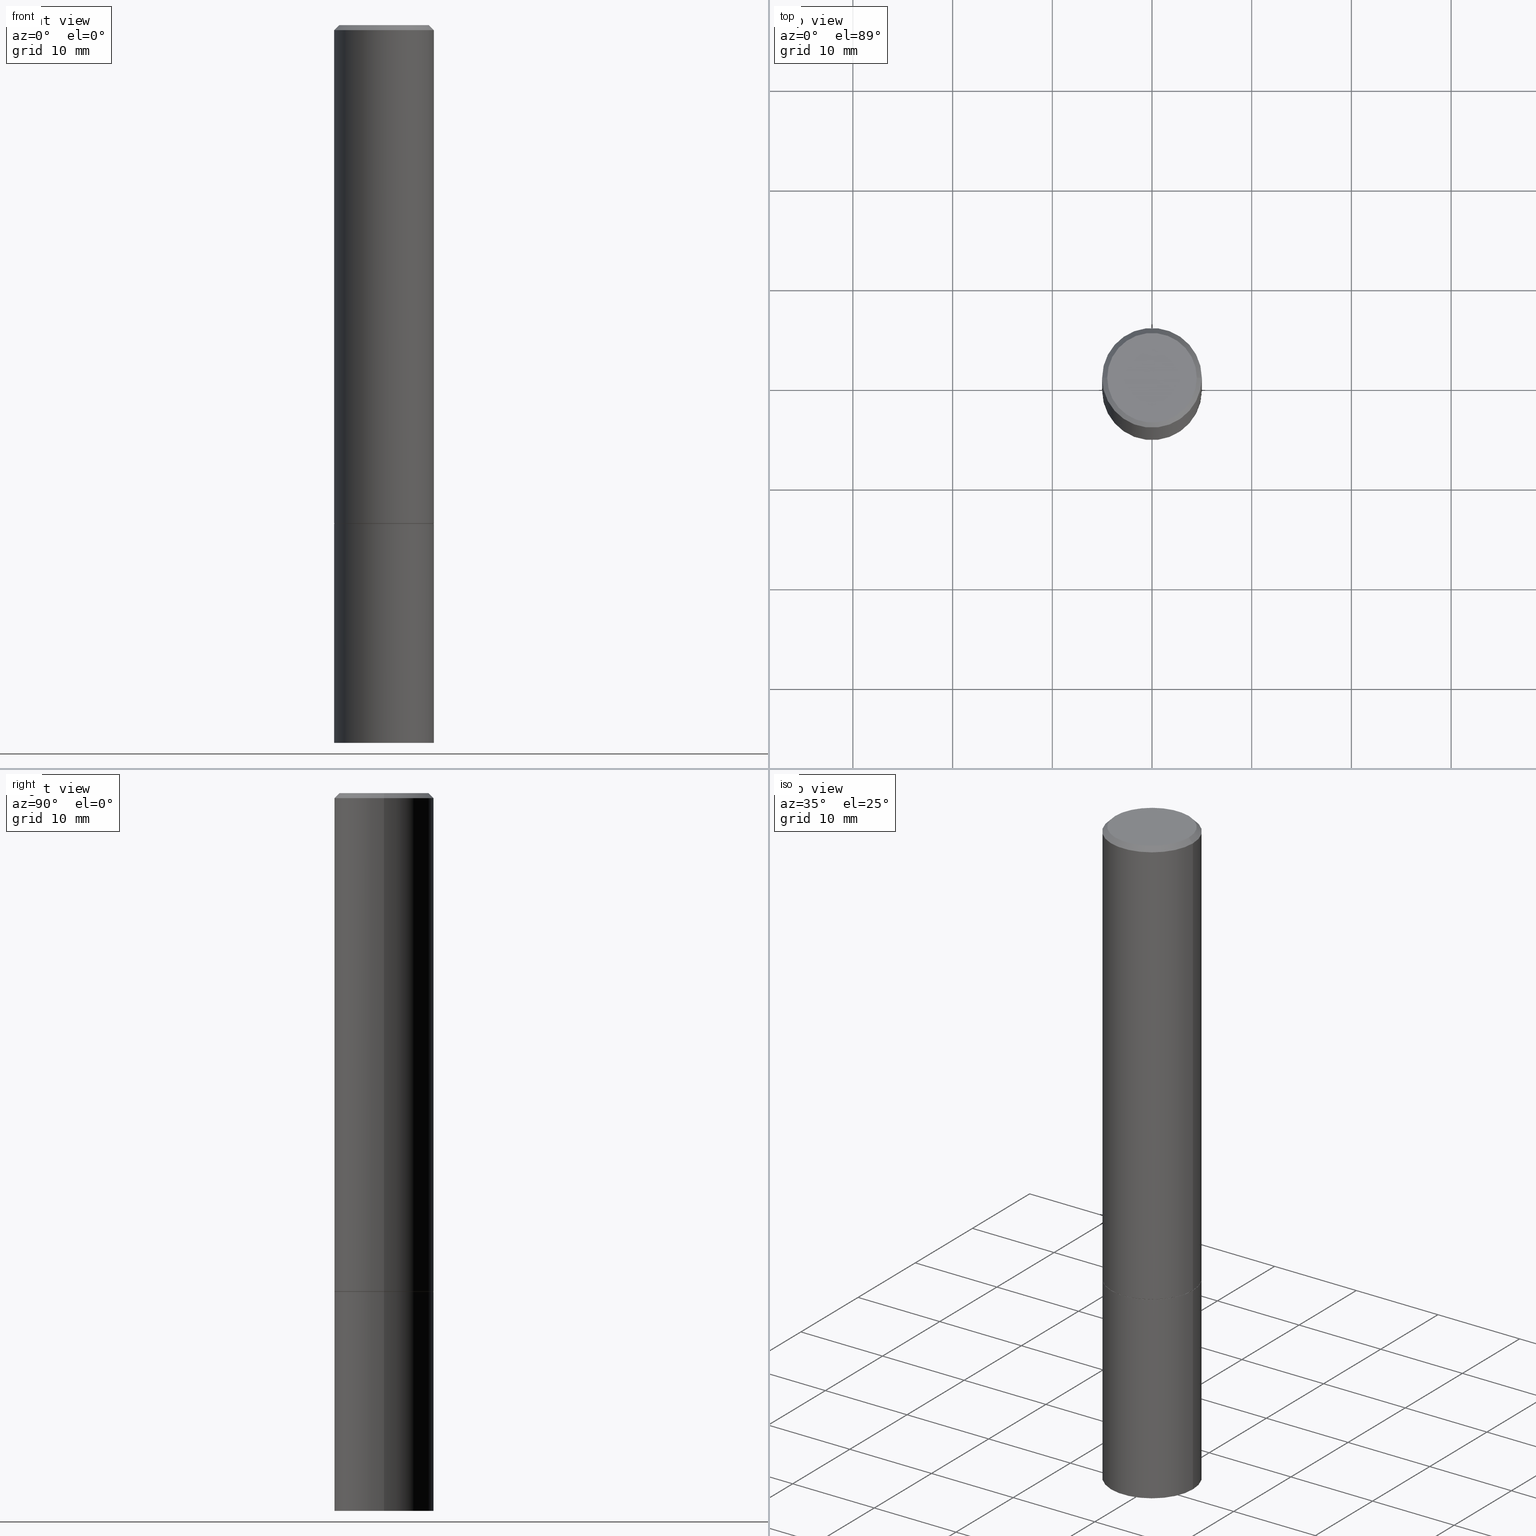
[diagram: canonical four-view strip — front | top / right | iso, engineering-drawing reading convention]
A machine part, canonical four-view strip (front | top / right | iso — engineering-drawing reading convention). The complete STEP part file that produces these views, byte-faithful:
ISO-10303-21;
HEADER;
FILE_DESCRIPTION (( 'STEP AP203' ),
    '1' );
FILE_NAME ('46364.STEP',
    '2024-02-28T10:23:35',
    ( '' ),
    ( '' ),
    'SwSTEP 2.0',
    'SolidWorks 2023',
    '' );
FILE_SCHEMA (( 'CONFIG_CONTROL_DESIGN' ));
ENDSEC;

DATA;
#1 = COORDINATED_UNIVERSAL_TIME_OFFSET ( 5, 0, .BEHIND. ) ;
#2 = ORIENTED_EDGE ( 'NONE', *, *, #43, .T. ) ;
#3 = LINE ( 'NONE', #337, #159 ) ;
#4 = CARTESIAN_POINT ( 'NONE',  ( 0.1958499999999999963, -8.240594255937587301E-15, -1.968500000000000139 ) ) ;
#5 = AXIS2_PLACEMENT_3D ( 'NONE', #317, #77, #11 ) ;
#6 = CC_DESIGN_APPROVAL ( #75, ( #284 ) ) ;
#7 = DESIGN_CONTEXT ( 'detailed design', #212, 'design' ) ;
#8 = ORIENTED_EDGE ( 'NONE', *, *, #99, .T. ) ;
#9 = ADVANCED_FACE ( 'NONE', ( #179 ), #154, .T. ) ;
#10 = DIRECTION ( 'NONE',  ( -2.438088387897960049E-29, 3.491481338843145188E-15, 1.000000000000000000 ) ) ;
#11 = DIRECTION ( 'NONE',  ( 1.000000000000000000, -6.982962677686267499E-15, 0.000000000000000000 ) ) ;
#12 = EDGE_CURVE ( 'NONE', #282, #65, #70, .T. ) ;
#13 = SECURITY_CLASSIFICATION ( '', '', #84 ) ;
#14 = PERSON_AND_ORGANIZATION ( #260, #228 ) ;
#15 = CARTESIAN_POINT ( 'NONE',  ( -0.1968500000000000250, -6.986263633954999297E-15, -1.968500000000000139 ) ) ;
#16 = DIRECTION ( 'NONE',  ( -2.445468806185136597E-29, 3.491481338843145583E-15, 1.000000000000000000 ) ) ;
#17 =( NAMED_UNIT ( * ) SI_UNIT ( $, .STERADIAN. ) SOLID_ANGLE_UNIT ( ) );
#18 = DIRECTION ( 'NONE',  ( 2.445468806185136597E-29, -3.491481338843145583E-15, -1.000000000000000000 ) ) ;
#19 = CARTESIAN_POINT ( 'NONE',  ( 0.1968500000000000250, -8.247577218615273316E-15, -1.968500000000000139 ) ) ;
#20 = CARTESIAN_POINT ( 'NONE',  ( 0.1968499999999997752, -1.420318657638187544E-15, -0.02000000000000004205 ) ) ;
#21 = ORIENTED_EDGE ( 'NONE', *, *, #258, .T. ) ;
#22 = DIRECTION ( 'NONE',  ( 1.000000000000000000, -6.982962677686268288E-15, 0.000000000000000000 ) ) ;
#23 = APPROVAL_STATUS ( 'not_yet_approved' ) ;
#24 = ORIENTED_EDGE ( 'NONE', *, *, #320, .F. ) ;
#25 = EDGE_CURVE ( 'NONE', #115, #110, #41, .T. ) ;
#26 = MANIFOLD_SOLID_BREP ( 'Body-Move/Copy2[2]', #200 ) ;
#27 = VECTOR ( 'NONE', #209, 39.37007874015748143 ) ;
#28 = EDGE_LOOP ( 'NONE', ( #360, #128, #174, #199 ) ) ;
#29 = PRODUCT_DEFINITION_SHAPE ( 'NONE', 'NONE',  #284 ) ;
#30 = ADVANCED_FACE ( 'NONE', ( #170 ), #118, .T. ) ;
#31 = AXIS2_PLACEMENT_3D ( 'NONE', #107, #307, #22 ) ;
#32 = CIRCLE ( 'NONE', #119, 0.1768499999999997851 ) ;
#33 = CARTESIAN_POINT ( 'NONE',  ( -0.1968499999999997752, 1.304766576325676930E-15, -0.02000000000000004205 ) ) ;
#34 = FACE_OUTER_BOUND ( 'NONE', #187, .T. ) ;
#35 = ORIENTED_EDGE ( 'NONE', *, *, #102, .T. ) ;
#36 = ADVANCED_FACE ( 'NONE', ( #214 ), #142, .T. ) ;
#37 = CARTESIAN_POINT ( 'NONE',  ( -0.1958499999999999963, -5.481383067526575717E-15, -1.968500000000000139 ) ) ;
#38 = APPLICATION_PROTOCOL_DEFINITION ( 'international standard', 'config_control_design', 1994, #212 ) ;
#39 = ORIENTED_EDGE ( 'NONE', *, *, #12, .F. ) ;
#40 = CC_DESIGN_PERSON_AND_ORGANIZATION_ASSIGNMENT ( #361, #48, ( #146 ) ) ;
#41 = CIRCLE ( 'NONE', #249, 0.1968500000000000250 ) ;
#42 = EDGE_LOOP ( 'NONE', ( #68, #97 ) ) ;
#43 = EDGE_CURVE ( 'NONE', #140, #282, #105, .T. ) ;
#44 = CARTESIAN_POINT ( 'NONE',  ( -0.1768499999999997851, 1.269851762937246069E-15, 4.268512490091652920E-18 ) ) ;
#45 = CIRCLE ( 'NONE', #256, 0.1968499999999997752 ) ;
#46 = AXIS2_PLACEMENT_3D ( 'NONE', #313, #176, #350 ) ;
#47 = DIRECTION ( 'NONE',  ( 1.000000000000000000, -6.982962677686267499E-15, 0.000000000000000000 ) ) ;
#48 = PERSON_AND_ORGANIZATION_ROLE ( 'creator' ) ;
#49 = CYLINDRICAL_SURFACE ( 'NONE', #206, 0.1968499999999999139 ) ;
#50 = EDGE_LOOP ( 'NONE', ( #151, #35, #329, #316 ) ) ;
#51 = ADVANCED_FACE ( 'NONE', ( #160 ), #197, .F. ) ;
#52 = PERSON_AND_ORGANIZATION ( #260, #228 ) ;
#53 = LINE ( 'NONE', #20, #321 ) ;
#54 = DIRECTION ( 'NONE',  ( -2.445468806185136877E-29, 3.491481338843145188E-15, 1.000000000000000000 ) ) ;
#55 = DIRECTION ( 'NONE',  ( -2.445468806185136597E-29, 3.491481338843145583E-15, 1.000000000000000000 ) ) ;
#56 = AXIS2_PLACEMENT_3D ( 'NONE', #332, #275, #335 ) ;
#57 = CARTESIAN_POINT ( 'NONE',  ( 0.1968499999999997752, -1.420318657638187544E-15, -0.02000000000000004205 ) ) ;
#58 = FACE_OUTER_BOUND ( 'NONE', #50, .T. ) ;
#59 = APPROVAL_PERSON_ORGANIZATION ( #295, #75, #164 ) ;
#60 = ADVANCED_FACE ( 'NONE', ( #191 ), #49, .T. ) ;
#61 = ADVANCED_BREP_SHAPE_REPRESENTATION ( '46364', ( #141, #26, #64 ), #264 ) ;
#62 = CYLINDRICAL_SURFACE ( 'NONE', #46, 0.1968499999999999139 ) ;
#63 = AXIS2_PLACEMENT_3D ( 'NONE', #347, #175, #301 ) ;
#64 = AXIS2_PLACEMENT_3D ( 'NONE', #166, #276, #139 ) ;
#65 = VERTEX_POINT ( 'NONE', #19 ) ;
#66 = ADVANCED_FACE ( 'NONE', ( #58 ), #216, .T. ) ;
#67 = DIRECTION ( 'NONE',  ( 1.000000000000000000, -6.982962677686265922E-15, 4.876176775795935793E-29 ) ) ;
#68 = ORIENTED_EDGE ( 'NONE', *, *, #320, .T. ) ;
#69 = LINE ( 'NONE', #344, #300 ) ;
#70 = CIRCLE ( 'NONE', #123, 0.1968500000000000250 ) ;
#71 = LOCAL_TIME ( 5, 23, 35.00000000000000000, #1 ) ;
#72 = ORIENTED_EDGE ( 'NONE', *, *, #25, .T. ) ;
#73 = ADVANCED_FACE ( 'NONE', ( #135 ), #248, .T. ) ;
#74 = ORIENTED_EDGE ( 'NONE', *, *, #131, .T. ) ;
#75 = APPROVAL ( #23, 'UNSPECIFIED' ) ;
#76 = DIRECTION ( 'NONE',  ( 1.000000000000000000, -6.982962677686265922E-15, 4.876176775795935793E-29 ) ) ;
#77 = DIRECTION ( 'NONE',  ( -2.445468806185136597E-29, 3.491481338843145583E-15, 1.000000000000000000 ) ) ;
#78 = APPROVAL_DATE_TIME ( #185, #75 ) ;
#79 = CONICAL_SURFACE ( 'NONE', #137, 0.1958499999999999963, 0.7853981633974141952 ) ;
#80 = DIRECTION ( 'NONE',  ( 1.000000000000000000, -6.982962677686268288E-15, 0.000000000000000000 ) ) ;
#81 = ORIENTED_EDGE ( 'NONE', *, *, #180, .F. ) ;
#82 = APPROVAL_DATE_TIME ( #303, #224 ) ;
#83 = DIRECTION ( 'NONE',  ( -2.445468806185136597E-29, 3.491481338843145583E-15, 1.000000000000000000 ) ) ;
#84 = SECURITY_CLASSIFICATION_LEVEL ( 'unclassified' ) ;
#85 = DIRECTION ( 'NONE',  ( 1.000000000000000000, -6.982962677686267499E-15, 0.000000000000000000 ) ) ;
#86 = EDGE_LOOP ( 'NONE', ( #265, #2, #24, #167 ) ) ;
#87 = CARTESIAN_POINT ( 'NONE',  ( 1.374596203102589532E-15, 0.1968499999999931416, -1.968500000000000805 ) ) ;
#88 = CARTESIAN_POINT ( 'NONE',  ( 1.374596203102610831E-15, 0.1968499999999901162, -2.834600000000000453 ) ) ;
#89 = PRODUCT ( '46364', '46364', '', ( #220 ) ) ;
#90 = ORIENTED_EDGE ( 'NONE', *, *, #126, .F. ) ;
#91 = AXIS2_PLACEMENT_3D ( 'NONE', #88, #305, #250 ) ;
#92 = CARTESIAN_POINT ( 'NONE',  ( 4.813905344975441835E-29, -6.872981015512731707E-15, -1.968500000000000139 ) ) ;
#93 = DIRECTION ( 'NONE',  ( -1.000000000000000000, 6.982962677686266711E-15, 0.000000000000000000 ) ) ;
#94 = CARTESIAN_POINT ( 'NONE',  ( -0.1968500000000000250, -6.986263633954999297E-15, -2.834600000000000009 ) ) ;
#95 = ORIENTED_EDGE ( 'NONE', *, *, #120, .T. ) ;
#96 = CALENDAR_DATE ( 2024, 28, 2 ) ;
#97 = ORIENTED_EDGE ( 'NONE', *, *, #12, .T. ) ;
#98 = ORIENTED_EDGE ( 'NONE', *, *, #294, .T. ) ;
#99 = EDGE_CURVE ( 'NONE', #306, #323, #182, .T. ) ;
#100 = CIRCLE ( 'NONE', #31, 0.1958499999999999963 ) ;
#101 = EDGE_LOOP ( 'NONE', ( #336, #95, #98, #39 ) ) ;
#102 = EDGE_CURVE ( 'NONE', #184, #323, #53, .T. ) ;
#103 = EDGE_LOOP ( 'NONE', ( #340, #221, #74, #8 ) ) ;
#104 = PERSON_AND_ORGANIZATION_ROLE ( 'classification_officer' ) ;
#105 = LINE ( 'NONE', #328, #348 ) ;
#106 = APPLICATION_PROTOCOL_DEFINITION ( 'international standard', 'config_control_design', 1994, #238 ) ;
#107 = CARTESIAN_POINT ( 'NONE',  ( 4.813905344975441835E-29, -6.872981015512731707E-15, -1.968500000000000139 ) ) ;
#108 = ORIENTED_EDGE ( 'NONE', *, *, #116, .T. ) ;
#109 = DIRECTION ( 'NONE',  ( -2.445468806185136597E-29, 3.491481338843145583E-15, 1.000000000000000000 ) ) ;
#110 = VERTEX_POINT ( 'NONE', #364 ) ;
#111 = FACE_OUTER_BOUND ( 'NONE', #211, .T. ) ;
#112 = EDGE_CURVE ( 'NONE', #354, #143, #100, .T. ) ;
#113 = CIRCLE ( 'NONE', #5, 0.1968500000000000250 ) ;
#114 = PLANE ( 'NONE',  #314 ) ;
#115 = VERTEX_POINT ( 'NONE', #225 ) ;
#116 = EDGE_CURVE ( 'NONE', #277, #184, #241, .T. ) ;
#117 = ORIENTED_EDGE ( 'NONE', *, *, #183, .F. ) ;
#118 = CONICAL_SURFACE ( 'NONE', #210, 0.1958499999999999963, 0.7853981633974141952 ) ;
#119 = AXIS2_PLACEMENT_3D ( 'NONE', #205, #291, #297 ) ;
#120 = EDGE_CURVE ( 'NONE', #140, #237, #129, .T. ) ;
#121 = CARTESIAN_POINT ( 'NONE',  ( -1.043851414335219820E-46, 1.490343170380447200E-32, 4.268512490100411279E-18 ) ) ;
#122 = COORDINATED_UNIVERSAL_TIME_OFFSET ( 5, 0, .BEHIND. ) ;
#123 = AXIS2_PLACEMENT_3D ( 'NONE', #299, #55, #47 ) ;
#124 = DIRECTION ( 'NONE',  ( 0.7071067811865232589, -2.468850131082003836E-15, 0.7071067811865715536 ) ) ;
#125 = ORIENTED_EDGE ( 'NONE', *, *, #112, .T. ) ;
#126 = EDGE_CURVE ( 'NONE', #110, #115, #227, .T. ) ;
#127 = APPROVAL_ROLE ( '' ) ;
#128 = ORIENTED_EDGE ( 'NONE', *, *, #147, .T. ) ;
#129 = CIRCLE ( 'NONE', #338, 0.1968500000000000250 ) ;
#130 = DIRECTION ( 'NONE',  ( -2.445468806185136597E-29, 3.491481338843145583E-15, 1.000000000000000000 ) ) ;
#131 = EDGE_CURVE ( 'NONE', #277, #306, #343, .T. ) ;
#132 = APPROVAL_STATUS ( 'not_yet_approved' ) ;
#133 = DIRECTION ( 'NONE',  ( 2.438088387897960049E-29, -3.491481338843145188E-15, -1.000000000000000000 ) ) ;
#134 = PERSON_AND_ORGANIZATION_ROLE ( 'creator' ) ;
#135 = FACE_OUTER_BOUND ( 'NONE', #101, .T. ) ;
#136 = DIRECTION ( 'NONE',  ( -2.445468806185136877E-29, 3.491481338843145188E-15, 1.000000000000000000 ) ) ;
#137 = AXIS2_PLACEMENT_3D ( 'NONE', #251, #109, #226 ) ;
#138 = DIRECTION ( 'NONE',  ( 0.7071067811865465735, -7.319954787623252890E-15, -0.7071067811865484609 ) ) ;
#139 = DIRECTION ( 'NONE',  ( 1.000000000000000000, 0.000000000000000000, 0.000000000000000000 ) ) ;
#140 = VERTEX_POINT ( 'NONE', #94 ) ;
#141 = MANIFOLD_SOLID_BREP ( 'Body-Move/Copy2[1]', #168 ) ;
#142 = PLANE ( 'NONE',  #91 ) ;
#143 = VERTEX_POINT ( 'NONE', #148 ) ;
#144 = UNCERTAINTY_MEASURE_WITH_UNIT (LENGTH_MEASURE( 1.000000000000000082E-05 ), #252, 'distance_accuracy_value', 'NONE');
#145 = CIRCLE ( 'NONE', #236, 0.1958499999999999963 ) ;
#146 = PRODUCT_DEFINITION_FORMATION_WITH_SPECIFIED_SOURCE ( 'ANY', '', #89, .NOT_KNOWN. ) ;
#147 = EDGE_CURVE ( 'NONE', #115, #306, #325, .T. ) ;
#148 = CARTESIAN_POINT ( 'NONE',  ( -0.1958499999999999963, -5.476084613178353315E-15, -1.968500000000000139 ) ) ;
#149 = EDGE_CURVE ( 'NONE', #237, #140, #113, .T. ) ;
#150 = CARTESIAN_POINT ( 'NONE',  ( 4.813905344975441835E-29, -6.872981015512731707E-15, -1.968500000000000139 ) ) ;
#151 = ORIENTED_EDGE ( 'NONE', *, *, #198, .F. ) ;
#152 = DIRECTION ( 'NONE',  ( -0.7071067811865232589, 7.493145998870265808E-15, 0.7071067811865715536 ) ) ;
#153 = DATE_AND_TIME ( #96, #363 ) ;
#154 = CYLINDRICAL_SURFACE ( 'NONE', #232, 0.1968500000000000250 ) ;
#155 = ORIENTED_EDGE ( 'NONE', *, *, #99, .F. ) ;
#156 = CC_DESIGN_PERSON_AND_ORGANIZATION_ASSIGNMENT ( #246, #104, ( #13 ) ) ;
#157 = ORIENTED_EDGE ( 'NONE', *, *, #258, .F. ) ;
#158 = CARTESIAN_POINT ( 'NONE',  ( 6.931925878012387517E-29, -9.896953003084780885E-15, -2.834600000000000009 ) ) ;
#159 = VECTOR ( 'NONE', #136, 39.37007874015748143 ) ;
#160 = FACE_OUTER_BOUND ( 'NONE', #346, .T. ) ;
#161 = DIRECTION ( 'NONE',  ( 1.000000000000000000, -6.982962677686268288E-15, 0.000000000000000000 ) ) ;
#162 = PERSON_AND_ORGANIZATION_ROLE ( 'design_supplier' ) ;
#163 = CARTESIAN_POINT ( 'NONE',  ( 0.000000000000000000, 0.000000000000000000, 0.000000000000000000 ) ) ;
#164 = APPROVAL_ROLE ( '' ) ;
#165 = DIRECTION ( 'NONE',  ( -2.445468806185136877E-29, 3.491481338843145188E-15, 1.000000000000000000 ) ) ;
#166 = CARTESIAN_POINT ( 'NONE',  ( 0.000000000000000000, 0.000000000000000000, 0.000000000000000000 ) ) ;
#167 = ORIENTED_EDGE ( 'NONE', *, *, #294, .F. ) ;
#168 = CLOSED_SHELL ( 'NONE', ( #9, #36, #366, #73 ) ) ;
#169 = EDGE_CURVE ( 'NONE', #323, #306, #45, .T. ) ;
#170 = FACE_OUTER_BOUND ( 'NONE', #311, .T. ) ;
#171 = DIRECTION ( 'NONE',  ( 2.438088387897960049E-29, -3.491481338843145188E-15, -1.000000000000000000 ) ) ;
#172 = LENGTH_MEASURE_WITH_UNIT ( LENGTH_MEASURE( 0.02539999999999999897 ), #308 );
#173 = DATE_TIME_ROLE ( 'classification_date' ) ;
#174 = ORIENTED_EDGE ( 'NONE', *, *, #169, .F. ) ;
#175 = DIRECTION ( 'NONE',  ( -2.445468806185136597E-29, 3.491481338843145583E-15, 1.000000000000000000 ) ) ;
#176 = DIRECTION ( 'NONE',  ( -2.445468806185136597E-29, 3.491481338843145583E-15, 1.000000000000000000 ) ) ;
#177 = PRODUCT_RELATED_PRODUCT_CATEGORY ( 'detail', '', ( #89 ) ) ;
#178 = LINE ( 'NONE', #37, #233 ) ;
#179 = FACE_OUTER_BOUND ( 'NONE', #86, .T. ) ;
#180 = EDGE_CURVE ( 'NONE', #354, #110, #69, .T. ) ;
#181 = DIRECTION ( 'NONE',  ( -2.445468806185136597E-29, 3.491481338843145583E-15, 1.000000000000000000 ) ) ;
#182 = CIRCLE ( 'NONE', #189, 0.1968499999999997752 ) ;
#183 = EDGE_CURVE ( 'NONE', #143, #354, #145, .T. ) ;
#184 = VERTEX_POINT ( 'NONE', #203 ) ;
#185 = DATE_AND_TIME ( #355, #71 ) ;
#186 = CC_DESIGN_DATE_AND_TIME_ASSIGNMENT ( #327, #173, ( #13 ) ) ;
#187 = EDGE_LOOP ( 'NONE', ( #253, #117 ) ) ;
#188 = CARTESIAN_POINT ( 'NONE',  ( 4.890937612370283668E-31, -6.982962677686305168E-17, -0.02000000000000004205 ) ) ;
#189 = AXIS2_PLACEMENT_3D ( 'NONE', #281, #83, #192 ) ;
#190 = COORDINATED_UNIVERSAL_TIME_OFFSET ( 5, 0, .BEHIND. ) ;
#191 = FACE_OUTER_BOUND ( 'NONE', #28, .T. ) ;
#192 = DIRECTION ( 'NONE',  ( 1.000000000000000000, -6.982962677686266711E-15, 0.000000000000000000 ) ) ;
#193 = ADVANCED_FACE ( 'NONE', ( #239 ), #257, .T. ) ;
#194 = PERSON_AND_ORGANIZATION ( #260, #228 ) ;
#195 = CARTESIAN_POINT ( 'NONE',  ( 0.000000000000000000, 0.000000000000000000, 0.000000000000000000 ) ) ;
#196 = CARTESIAN_POINT ( 'NONE',  ( 0.1968499999999999139, -1.374596203102541017E-15, 9.598753983154295253E-30 ) ) ;
#197 = PLANE ( 'NONE',  #278 ) ;
#198 = EDGE_CURVE ( 'NONE', #184, #277, #32, .T. ) ;
#199 = ORIENTED_EDGE ( 'NONE', *, *, #310, .F. ) ;
#200 = CLOSED_SHELL ( 'NONE', ( #345, #60, #66, #193, #204, #30, #247, #51 ) ) ;
#201 = ORIENTED_EDGE ( 'NONE', *, *, #198, .T. ) ;
#202 = SHAPE_DEFINITION_REPRESENTATION ( #29, #61 ) ;
#203 = CARTESIAN_POINT ( 'NONE',  ( 0.1768499999999997851, -1.316798864272040563E-15, 4.268512490109333727E-18 ) ) ;
#204 = ADVANCED_FACE ( 'NONE', ( #312 ), #62, .T. ) ;
#205 = CARTESIAN_POINT ( 'NONE',  ( -1.043851414335219820E-46, 1.490343170380447200E-32, 4.268512490100411279E-18 ) ) ;
#206 = AXIS2_PLACEMENT_3D ( 'NONE', #163, #309, #272 ) ;
#207 = PLANE ( 'NONE',  #217 ) ;
#208 = ORIENTED_EDGE ( 'NONE', *, *, #183, .T. ) ;
#209 = DIRECTION ( 'NONE',  ( -2.445468806185136877E-29, 3.491481338843145188E-15, 1.000000000000000000 ) ) ;
#210 = AXIS2_PLACEMENT_3D ( 'NONE', #304, #16, #80 ) ;
#211 = EDGE_LOOP ( 'NONE', ( #125, #21, #90, #81 ) ) ;
#212 = APPLICATION_CONTEXT ( 'configuration controlled 3d designs of mechanical parts and assemblies' ) ;
#213 = DIRECTION ( 'NONE',  ( -0.7071067811865465735, 2.468850131082246805E-15, -0.7071067811865484609 ) ) ;
#214 = FACE_OUTER_BOUND ( 'NONE', #349, .T. ) ;
#215 = LINE ( 'NONE', #196, #326 ) ;
#216 = CONICAL_SURFACE ( 'NONE', #56, 0.1968499999999997752, 0.7853981633974469467 ) ;
#217 = AXIS2_PLACEMENT_3D ( 'NONE', #150, #10, #67 ) ;
#218 = CALENDAR_DATE ( 2024, 28, 2 ) ;
#219 = DIRECTION ( 'NONE',  ( 1.000000000000000000, -6.982962677686265922E-15, 4.876176775795935793E-29 ) ) ;
#220 = MECHANICAL_CONTEXT ( 'NONE', #238, 'mechanical' ) ;
#221 = ORIENTED_EDGE ( 'NONE', *, *, #116, .F. ) ;
#222 = DATE_AND_TIME ( #270, #269 ) ;
#223 = DIRECTION ( 'NONE',  ( -2.445468806185136597E-29, 3.491481338843145583E-15, 1.000000000000000000 ) ) ;
#224 = APPROVAL ( #132, 'UNSPECIFIED' ) ;
#225 = CARTESIAN_POINT ( 'NONE',  ( -0.1968500000000000250, -2.070956205131617817E-15, -1.967500000000000027 ) ) ;
#226 = DIRECTION ( 'NONE',  ( 1.000000000000000000, -6.982962677686268288E-15, 0.000000000000000000 ) ) ;
#227 = CIRCLE ( 'NONE', #63, 0.1968500000000000250 ) ;
#228 = ORGANIZATION ( 'UNSPECIFIED', 'UNSPECIFIED', '' ) ;
#229 =( NAMED_UNIT ( * ) PLANE_ANGLE_UNIT ( ) SI_UNIT ( $, .RADIAN. ) );
#230 = DIRECTION ( 'NONE',  ( -1.000000000000000000, 6.982962677686265922E-15, -4.876176775795935793E-29 ) ) ;
#231 = EDGE_LOOP ( 'NONE', ( #290, #72, #296, #155 ) ) ;
#232 = AXIS2_PLACEMENT_3D ( 'NONE', #263, #324, #76 ) ;
#233 = VECTOR ( 'NONE', #152, 39.37007874015748854 ) ;
#234 = CC_DESIGN_PERSON_AND_ORGANIZATION_ASSIGNMENT ( #194, #162, ( #146 ) ) ;
#235 = DIRECTION ( 'NONE',  ( 1.000000000000000000, -6.982962677686267499E-15, 0.000000000000000000 ) ) ;
#236 = AXIS2_PLACEMENT_3D ( 'NONE', #92, #262, #161 ) ;
#237 = VERTEX_POINT ( 'NONE', #289 ) ;
#238 = APPLICATION_CONTEXT ( 'configuration controlled 3d designs of mechanical parts and assemblies' ) ;
#239 = FACE_OUTER_BOUND ( 'NONE', #103, .T. ) ;
#240 = ORIENTED_EDGE ( 'NONE', *, *, #120, .F. ) ;
#241 = CIRCLE ( 'NONE', #287, 0.1768499999999997851 ) ;
#242 = DIRECTION ( 'NONE',  ( 1.000000000000000000, -6.982962677686266711E-15, 4.875932113059884174E-29 ) ) ;
#243 = COORDINATED_UNIVERSAL_TIME_OFFSET ( 5, 0, .BEHIND. ) ;
#244 = CARTESIAN_POINT ( 'NONE',  ( 4.811459876169256232E-29, -6.869489534173888700E-15, -1.967500000000000027 ) ) ;
#245 = CARTESIAN_POINT ( 'NONE',  ( -0.1968499999999997752, 1.304766576325676930E-15, -0.02000000000000004205 ) ) ;
#246 = PERSON_AND_ORGANIZATION ( #260, #228 ) ;
#247 = ADVANCED_FACE ( 'NONE', ( #34 ), #207, .F. ) ;
#248 = CYLINDRICAL_SURFACE ( 'NONE', #341, 0.1968500000000000250 ) ;
#249 = AXIS2_PLACEMENT_3D ( 'NONE', #244, #223, #85 ) ;
#250 = DIRECTION ( 'NONE',  ( -1.000000000000000000, 6.982962677686265922E-15, -4.876176775795935793E-29 ) ) ;
#251 = CARTESIAN_POINT ( 'NONE',  ( 4.813905344975441835E-29, -6.872981015512731707E-15, -1.968500000000000139 ) ) ;
#252 =( CONVERSION_BASED_UNIT ( 'INCH', #172 ) LENGTH_UNIT ( ) NAMED_UNIT ( #255 ) );
#253 = ORIENTED_EDGE ( 'NONE', *, *, #112, .F. ) ;
#254 = DIRECTION ( 'NONE',  ( -2.445468806185136597E-29, 3.491481338843145583E-15, 1.000000000000000000 ) ) ;
#255 = DIMENSIONAL_EXPONENTS ( 1.000000000000000000, 0.000000000000000000, 0.000000000000000000, 0.000000000000000000, 0.000000000000000000, 0.000000000000000000, 0.000000000000000000 ) ;
#256 = AXIS2_PLACEMENT_3D ( 'NONE', #188, #181, #268 ) ;
#257 = CONICAL_SURFACE ( 'NONE', #288, 0.1968499999999997752, 0.7853981633974469467 ) ;
#258 = EDGE_CURVE ( 'NONE', #143, #115, #178, .T. ) ;
#259 = APPROVAL_PERSON_ORGANIZATION ( #52, #224, #331 ) ;
#260 = PERSON ( 'UNSPECIFIED', 'UNSPECIFIED', 'UNSPECIFIED', ('UNSPECIFIED'), ('UNSPECIFIED'), ('UNSPECIFIED') ) ;
#261 = DIRECTION ( 'NONE',  ( -2.445468806185136597E-29, 3.491481338843145583E-15, 1.000000000000000000 ) ) ;
#262 = DIRECTION ( 'NONE',  ( -2.445468806185136597E-29, 3.491481338843145583E-15, 1.000000000000000000 ) ) ;
#263 = CARTESIAN_POINT ( 'NONE',  ( 0.000000000000000000, 0.000000000000000000, 0.000000000000000000 ) ) ;
#264 =( GEOMETRIC_REPRESENTATION_CONTEXT ( 3 ) GLOBAL_UNCERTAINTY_ASSIGNED_CONTEXT ( ( #144 ) ) GLOBAL_UNIT_ASSIGNED_CONTEXT ( ( #252, #229, #17 ) ) REPRESENTATION_CONTEXT ( 'NONE', 'WORKASPACE' ) );
#265 = ORIENTED_EDGE ( 'NONE', *, *, #149, .T. ) ;
#266 = ORIENTED_EDGE ( 'NONE', *, *, #180, .T. ) ;
#267 = VECTOR ( 'NONE', #213, 39.37007874015748143 ) ;
#268 = DIRECTION ( 'NONE',  ( 1.000000000000000000, -6.982962677686266711E-15, 0.000000000000000000 ) ) ;
#269 = LOCAL_TIME ( 5, 23, 35.00000000000000000, #190 ) ;
#270 = CALENDAR_DATE ( 2024, 28, 2 ) ;
#271 = CARTESIAN_POINT ( 'NONE',  ( 4.890937612370283668E-31, -6.982962677686305168E-17, -0.02000000000000004205 ) ) ;
#272 = DIRECTION ( 'NONE',  ( 1.000000000000000000, -6.982962677686266711E-15, 4.876176775795935793E-29 ) ) ;
#273 = ORIENTED_EDGE ( 'NONE', *, *, #149, .F. ) ;
#274 = DATE_TIME_ROLE ( 'creation_date' ) ;
#275 = DIRECTION ( 'NONE',  ( 2.445468806185136597E-29, -3.491481338843145583E-15, -1.000000000000000000 ) ) ;
#276 = DIRECTION ( 'NONE',  ( 0.000000000000000000, 0.000000000000000000, 1.000000000000000000 ) ) ;
#277 = VERTEX_POINT ( 'NONE', #44 ) ;
#278 = AXIS2_PLACEMENT_3D ( 'NONE', #356, #133, #359 ) ;
#279 = CC_DESIGN_APPROVAL ( #315, ( #13 ) ) ;
#280 = COORDINATED_UNIVERSAL_TIME_OFFSET ( 5, 0, .BEHIND. ) ;
#281 = CARTESIAN_POINT ( 'NONE',  ( 4.890937612370283668E-31, -6.982962677686305168E-17, -0.02000000000000004205 ) ) ;
#282 = VERTEX_POINT ( 'NONE', #15 ) ;
#283 = CARTESIAN_POINT ( 'NONE',  ( 4.813905344975441835E-29, -6.872981015512731707E-15, -1.968500000000000139 ) ) ;
#284 = PRODUCT_DEFINITION ( 'UNKNOWN', '', #146, #7 ) ;
#285 = CC_DESIGN_APPROVAL ( #224, ( #146 ) ) ;
#286 = APPROVAL_DATE_TIME ( #153, #315 ) ;
#287 = AXIS2_PLACEMENT_3D ( 'NONE', #121, #261, #242 ) ;
#288 = AXIS2_PLACEMENT_3D ( 'NONE', #271, #18, #93 ) ;
#289 = CARTESIAN_POINT ( 'NONE',  ( 0.1968500000000000250, -1.127154920618732249E-14, -2.834600000000000009 ) ) ;
#290 = ORIENTED_EDGE ( 'NONE', *, *, #147, .F. ) ;
#291 = DIRECTION ( 'NONE',  ( -2.445468806185136597E-29, 3.491481338843145583E-15, 1.000000000000000000 ) ) ;
#292 = PERSON_AND_ORGANIZATION_ROLE ( 'design_owner' ) ;
#293 = LOCAL_TIME ( 5, 23, 35.00000000000000000, #280 ) ;
#294 = EDGE_CURVE ( 'NONE', #237, #65, #3, .T. ) ;
#295 = PERSON_AND_ORGANIZATION ( #260, #228 ) ;
#296 = ORIENTED_EDGE ( 'NONE', *, *, #310, .T. ) ;
#297 = DIRECTION ( 'NONE',  ( 1.000000000000000000, -6.982962677686266711E-15, 4.875932113059884174E-29 ) ) ;
#298 = PERSON_AND_ORGANIZATION ( #260, #228 ) ;
#299 = CARTESIAN_POINT ( 'NONE',  ( 4.813905344975441835E-29, -6.872981015512731707E-15, -1.968500000000000139 ) ) ;
#300 = VECTOR ( 'NONE', #124, 39.37007874015748854 ) ;
#301 = DIRECTION ( 'NONE',  ( 1.000000000000000000, -6.982962677686267499E-15, 0.000000000000000000 ) ) ;
#302 = CIRCLE ( 'NONE', #353, 0.1968500000000000250 ) ;
#303 = DATE_AND_TIME ( #358, #322 ) ;
#304 = CARTESIAN_POINT ( 'NONE',  ( 4.813905344975441835E-29, -6.872981015512731707E-15, -1.968500000000000139 ) ) ;
#305 = DIRECTION ( 'NONE',  ( 2.438088387897960049E-29, -3.491481338843145188E-15, -1.000000000000000000 ) ) ;
#306 = VERTEX_POINT ( 'NONE', #245 ) ;
#307 = DIRECTION ( 'NONE',  ( -2.445468806185136597E-29, 3.491481338843145583E-15, 1.000000000000000000 ) ) ;
#308 =( LENGTH_UNIT ( ) NAMED_UNIT ( * ) SI_UNIT ( $, .METRE. ) );
#309 = DIRECTION ( 'NONE',  ( -2.445468806185136597E-29, 3.491481338843145583E-15, 1.000000000000000000 ) ) ;
#310 = EDGE_CURVE ( 'NONE', #110, #323, #215, .T. ) ;
#311 = EDGE_LOOP ( 'NONE', ( #157, #208, #266, #318 ) ) ;
#312 = FACE_OUTER_BOUND ( 'NONE', #231, .T. ) ;
#313 = CARTESIAN_POINT ( 'NONE',  ( 0.000000000000000000, 0.000000000000000000, 0.000000000000000000 ) ) ;
#314 = AXIS2_PLACEMENT_3D ( 'NONE', #87, #171, #230 ) ;
#315 = APPROVAL ( #351, 'UNSPECIFIED' ) ;
#316 = ORIENTED_EDGE ( 'NONE', *, *, #131, .F. ) ;
#317 = CARTESIAN_POINT ( 'NONE',  ( 6.931925878012387517E-29, -9.896953003084780885E-15, -2.834600000000000009 ) ) ;
#318 = ORIENTED_EDGE ( 'NONE', *, *, #25, .F. ) ;
#319 = CARTESIAN_POINT ( 'NONE',  ( -0.1968499999999999139, 1.398703375343756604E-15, -9.682923725166778072E-30 ) ) ;
#320 = EDGE_CURVE ( 'NONE', #65, #282, #302, .T. ) ;
#321 = VECTOR ( 'NONE', #138, 39.37007874015748143 ) ;
#322 = LOCAL_TIME ( 5, 23, 35.00000000000000000, #243 ) ;
#323 = VERTEX_POINT ( 'NONE', #57 ) ;
#324 = DIRECTION ( 'NONE',  ( -2.445468806185136597E-29, 3.491481338843145583E-15, 1.000000000000000000 ) ) ;
#325 = LINE ( 'NONE', #319, #27 ) ;
#326 = VECTOR ( 'NONE', #54, 39.37007874015748143 ) ;
#327 = DATE_AND_TIME ( #218, #293 ) ;
#328 = CARTESIAN_POINT ( 'NONE',  ( -0.1968500000000000250, 1.398703375343757393E-15, -9.682923725166783677E-30 ) ) ;
#329 = ORIENTED_EDGE ( 'NONE', *, *, #169, .T. ) ;
#330 = DIRECTION ( 'NONE',  ( 1.000000000000000000, -6.982962677686267499E-15, 0.000000000000000000 ) ) ;
#331 = APPROVAL_ROLE ( '' ) ;
#332 = CARTESIAN_POINT ( 'NONE',  ( 4.890937612370283668E-31, -6.982962677686305168E-17, -0.02000000000000004205 ) ) ;
#333 = FACE_OUTER_BOUND ( 'NONE', #42, .T. ) ;
#334 = CC_DESIGN_PERSON_AND_ORGANIZATION_ASSIGNMENT ( #365, #292, ( #89 ) ) ;
#335 = DIRECTION ( 'NONE',  ( -1.000000000000000000, 6.982962677686266711E-15, 0.000000000000000000 ) ) ;
#336 = ORIENTED_EDGE ( 'NONE', *, *, #43, .F. ) ;
#337 = CARTESIAN_POINT ( 'NONE',  ( 0.1968500000000000250, -1.374596203102541608E-15, 9.598753983154300858E-30 ) ) ;
#338 = AXIS2_PLACEMENT_3D ( 'NONE', #158, #130, #235 ) ;
#339 = CC_DESIGN_SECURITY_CLASSIFICATION ( #13, ( #146 ) ) ;
#340 = ORIENTED_EDGE ( 'NONE', *, *, #102, .F. ) ;
#341 = AXIS2_PLACEMENT_3D ( 'NONE', #195, #362, #219 ) ;
#342 = APPROVAL_PERSON_ORGANIZATION ( #14, #315, #127 ) ;
#343 = LINE ( 'NONE', #33, #267 ) ;
#344 = CARTESIAN_POINT ( 'NONE',  ( 0.1958499999999999963, -8.240594255937587301E-15, -1.968500000000000139 ) ) ;
#345 = ADVANCED_FACE ( 'NONE', ( #111 ), #79, .T. ) ;
#346 = EDGE_LOOP ( 'NONE', ( #108, #201 ) ) ;
#347 = CARTESIAN_POINT ( 'NONE',  ( 4.811459876169256232E-29, -6.869489534173888700E-15, -1.967500000000000027 ) ) ;
#348 = VECTOR ( 'NONE', #165, 39.37007874015748143 ) ;
#349 = EDGE_LOOP ( 'NONE', ( #273, #240 ) ) ;
#350 = DIRECTION ( 'NONE',  ( 1.000000000000000000, -6.982962677686266711E-15, 4.876176775795935793E-29 ) ) ;
#351 = APPROVAL_STATUS ( 'not_yet_approved' ) ;
#352 = CC_DESIGN_DATE_AND_TIME_ASSIGNMENT ( #222, #274, ( #284 ) ) ;
#353 = AXIS2_PLACEMENT_3D ( 'NONE', #283, #254, #330 ) ;
#354 = VERTEX_POINT ( 'NONE', #4 ) ;
#355 = CALENDAR_DATE ( 2024, 28, 2 ) ;
#356 = CARTESIAN_POINT ( 'NONE',  ( 1.234936949548814617E-15, 0.1768499999999997851, -6.153342185293593634E-16 ) ) ;
#357 = CC_DESIGN_PERSON_AND_ORGANIZATION_ASSIGNMENT ( #298, #134, ( #284 ) ) ;
#358 = CALENDAR_DATE ( 2024, 28, 2 ) ;
#359 = DIRECTION ( 'NONE',  ( -1.000000000000000000, 6.982962677686265922E-15, -4.876176775795935793E-29 ) ) ;
#360 = ORIENTED_EDGE ( 'NONE', *, *, #126, .T. ) ;
#361 = PERSON_AND_ORGANIZATION ( #260, #228 ) ;
#362 = DIRECTION ( 'NONE',  ( -2.445468806185136597E-29, 3.491481338843145583E-15, 1.000000000000000000 ) ) ;
#363 = LOCAL_TIME ( 5, 23, 35.00000000000000000, #122 ) ;
#364 = CARTESIAN_POINT ( 'NONE',  ( 0.1968500000000000250, -8.244085737276430308E-15, -1.967500000000000027 ) ) ;
#365 = PERSON_AND_ORGANIZATION ( #260, #228 ) ;
#366 = ADVANCED_FACE ( 'NONE', ( #333 ), #114, .F. ) ;
ENDSEC;
END-ISO-10303-21;
